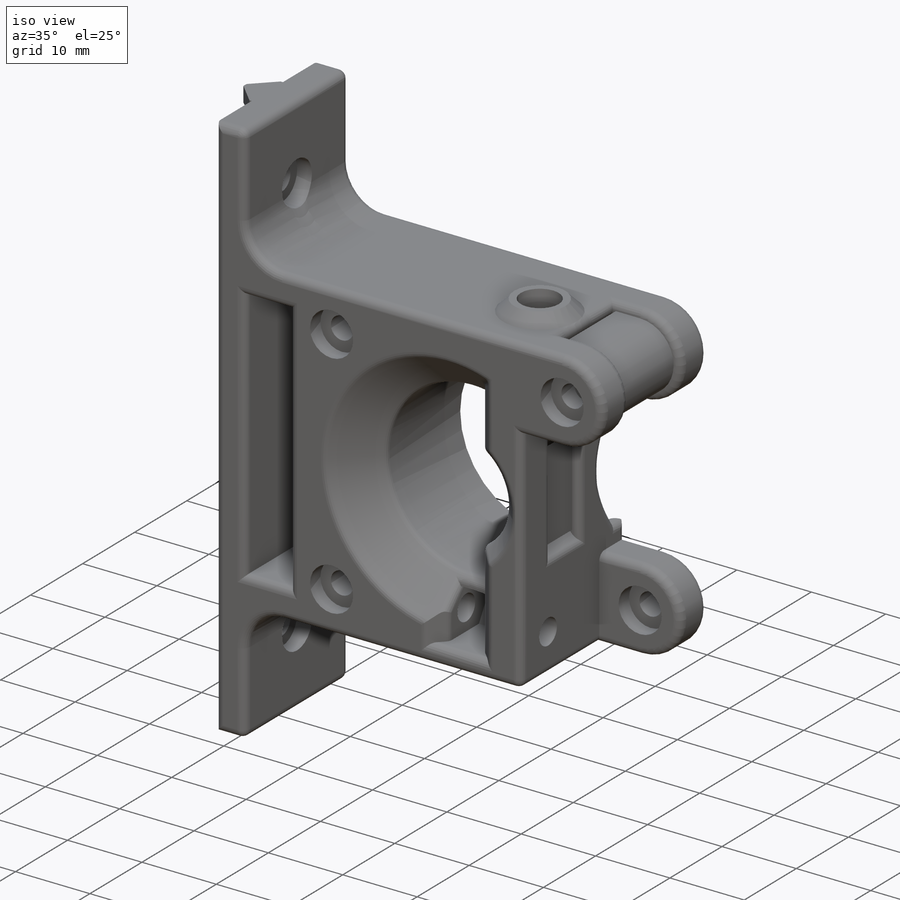
[diagram: iso view]
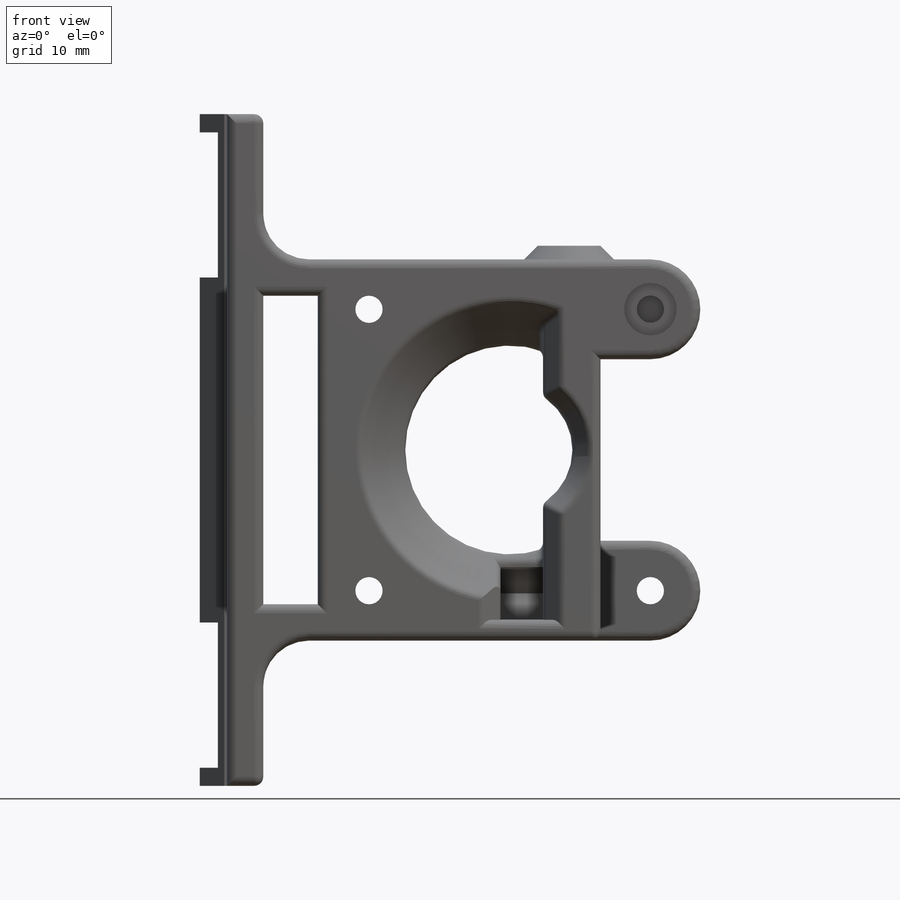
[diagram: front view]
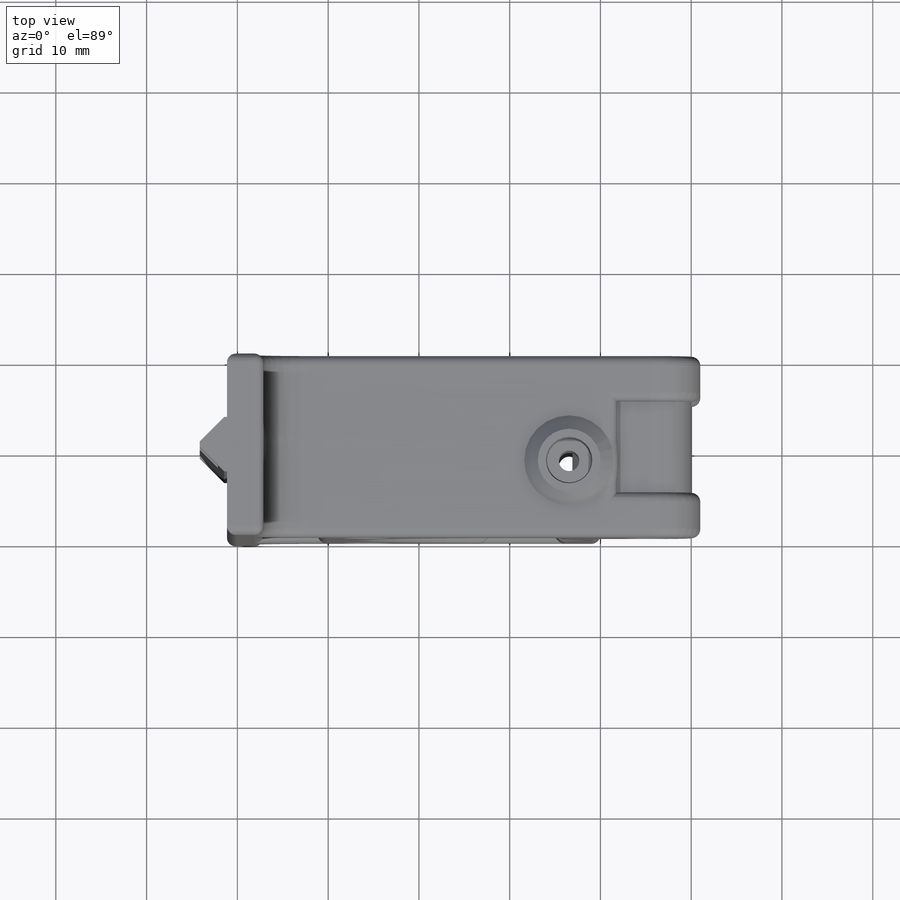
[diagram: top view]
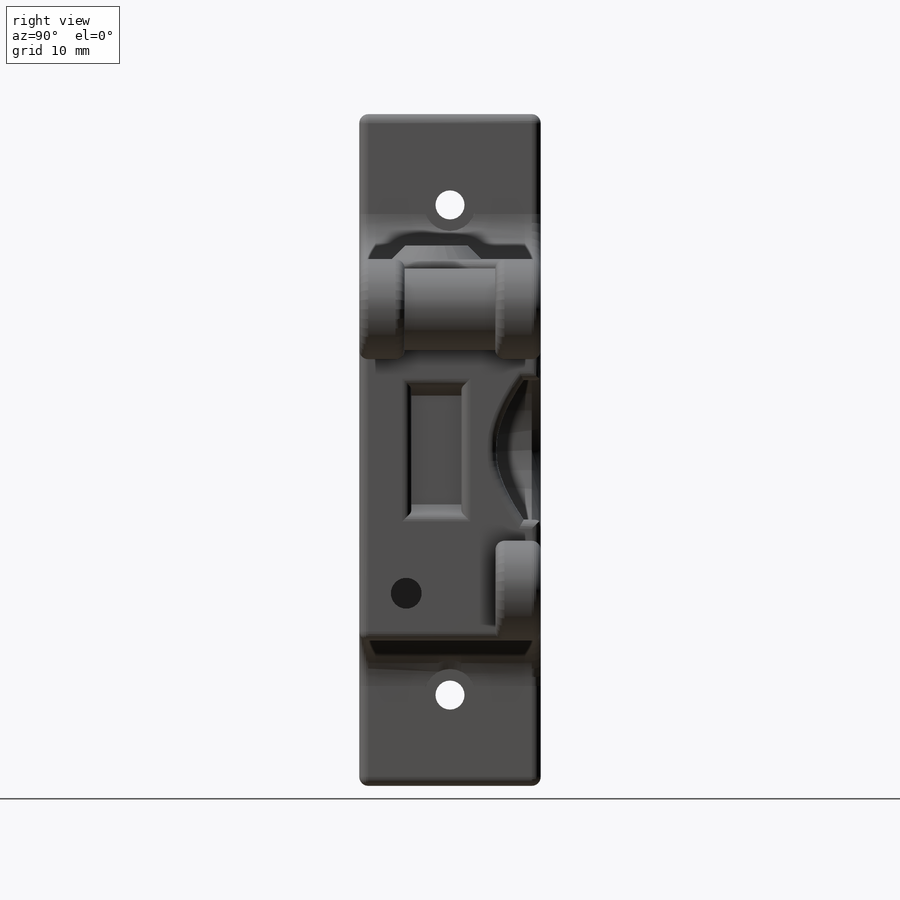
[diagram: right view]
SOLIDWORKS PART (.sldprt)
format: sldprt  version: not decoded by parser v0  size: 2,417,152 bytes
history: native  units: mm
features: sketch x24, extrude x12, cut_extrude x11, fillet x7, chamfer x7, material x1 (+13 scaffold rows collapsed)
feature tree (75):
  scaffold x13  (default folders/planes/origin — collapsed)
  material  "Material <not specified>"
  sketch  "Reference"  dims[c1.D1=12.82mm c1.D2=16.5mm c1.D3=11.35mm c1.D6=22.0mm c1.D7=8.5mm c1.D8=5.0mm c2.D3=0.5mm c2.D4=1.25mm c2.D5=0.0mm]
  sketch  "Sketch25"  dims[c1.D6=1.0mm c1.D7=2.0mm c1.D2=16.0mm c1.D3=6.0mm c1.D4=4.0mm c1.D5=6.0mm c1.D8=1.0mm c2.D5=20.0mm c2.D1=0.5mm]
  extrude  "Boss-Extrude1"  Depth=5mm
  sketch  "Sketch26"  dims[c1.D1=0.75mm c1.D2=2.0mm c2.D1=0.0mm]
  extrude  "Boss-Extrude3"  Depth=10mm
  sketch  "Sketch33"  dims[D1=0.0mm D2=0.0mm]
  extrude  "Boss-Extrude6"  Depth=3mm
  sketch  "Sketch27"  dims[c1.D1=5.5mm c1.D2=20.0mm c2.D1=5.5mm c2.D2=20.0mm]
  cut_extrude  "Cut-Extrude2"  [1 undecoded]
  sketch  "Sketch31"  dims[D1=0.5mm]
  cut_extrude  "Cut-Extrude4"  [1 undecoded]
  sketch  "Sketch28"  dims[D1=0.75mm D2=0.0mm]
  extrude  "Boss-Extrude4"  [1 undecoded]
  sketch  "Sketch29"  dims[D2=5.8mm D1=0.0mm]
  cut_extrude  "Cut-Extrude3"  Depth=2mm
  sketch  "Sketch32"  dims[D1=2.25mm D2=0.25mm]
  cut_extrude  "Cut-Extrude5"  [1 undecoded]
  sketch  "Sketch43"  dims[D1=4.9mm]
  cut_extrude  "Cut-Extrude12"  Depth=3.6mm
  sketch  "Sketch34"  dims[D1=0.0mm D2=0.0mm]
  extrude  "Boss-Extrude7"  Depth=20mm
  sketch  "Sketch35"  dims[D1=4.0mm]
  cut_extrude  "Cut-Extrude7"  [1 undecoded]
  sketch  "Sketch36"  dims[D1=3.2mm D2=10.0mm]
  cut_extrude  "Cut-Extrude8"  [1 undecoded]
  sketch  "Sketch48"  dims[D1=6.0mm]
  extrude  "Boss-Extrude13"  Depth=3mm
  sketch  "Sketch49"  dims[D1=16.0mm]
  cut_extrude  "Cut-Extrude13"  Depth=2mm
  fillet  "Fillet1"  Radius=5mm
  sketch  "Sketch37"  dims[D1=5.75mm]
  cut_extrude  "Cut-Extrude9"  Depth=2mm
  sketch  "Sketch38"
  extrude  "Boss-Extrude8"  [1 undecoded]
  chamfer  "Chamfer1"  Distance=3mm Angle=45deg
  sketch  "Sketch39"  dims[D1=3.4mm D2=0.5mm D3=3.5mm]
  cut_extrude  "Cut-Extrude10"  Depth=20mm
  sketch  "Sketch42"  dims[D1=0.75mm D2=5.8mm]
  cut_extrude  "Cut-Extrude11"  Depth=5mm
  chamfer  "Chamfer4"  Distance=5mm Angle=45deg
  sketch  "Sketch50"  dims[D1=0.0mm]
  extrude  "Boss-Extrude14"  [1 undecoded]
  sketch  "Sketch51"  dims[D1=1.0mm]
  extrude  "Boss-Extrude15"  Depth=1.5mm
  chamfer  "Chamfer2"  Distance=2mm Angle=45deg
  chamfer  "Chamfer8"  Distance=1.5mm Angle=45deg
  fillet  "Fillet-Important"  Radius=1mm
  fillet  "Fillet-Top"  Radius=1mm
  chamfer  "Chamfer5"  Distance=1mm Angle=45deg
  fillet  "Fillet3-Bottom"  Radius=1mm
  fillet  "Fillet-Vertical"  Radius=1mm
  chamfer  "Chamfer-Nuthole"  Distance=1mm Angle=45deg
  fillet  "Fillet-Interior"  Radius=1mm
  fillet  "Fillet11"  Radius=1mm
  sketch  "Sketch45"
  extrude  "Boss-Support Material 1"  Depth=0.5mm
  sketch  "Sketch44"  dims[c1.D2=~3.582952mm c1.D1=0.5mm c2.D2=0.5mm]
  extrude  "Boss-Support Material 2"  [1 undecoded]
  sketch  "Sketch46"  dims[c1.D1=0.0mm c1.D2=0.25mm c1.D3=0.4mm c1.D4=0.4mm c2.D1=0.4mm c2.D2=0.0mm c2.D3=0.4mm c3.D1=0.4mm c3.D2=0.4mm]
  extrude  "Boss-Support Material 3"  [1 undecoded]
  chamfer  "Chamfer-PrintEnabler"  Distance=2.7mm Angle=45deg
decode coverage: 49 of 61 modeling features carry decoded parameters
note: ~ marks probable driven/reference dimensions
note: 10 parameter values undecoded
summary: no parameter record found for 10 features
note: suppression state not decoded; provenance and decode notes live in map.json
